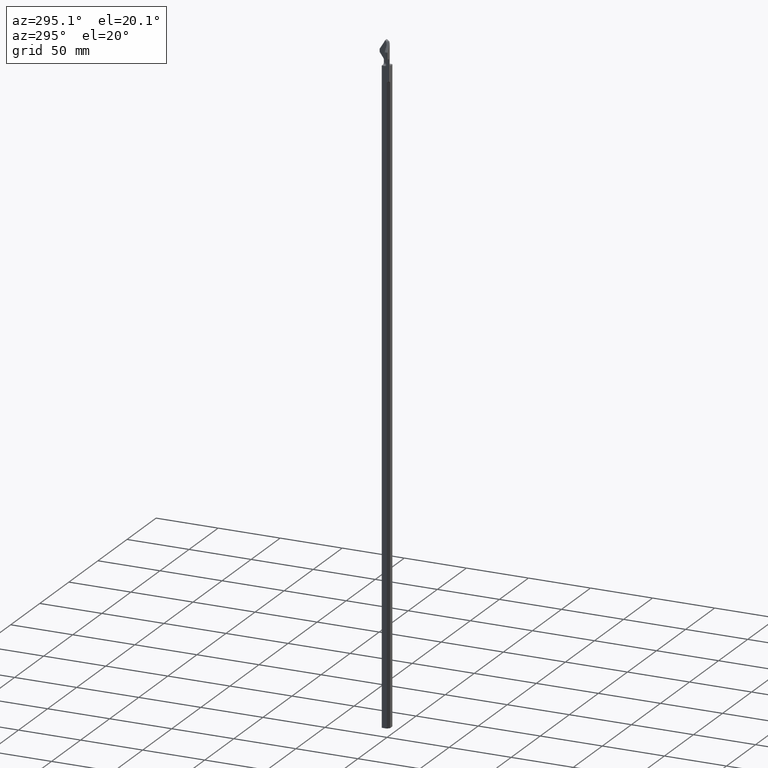
[diagram: clean part render]
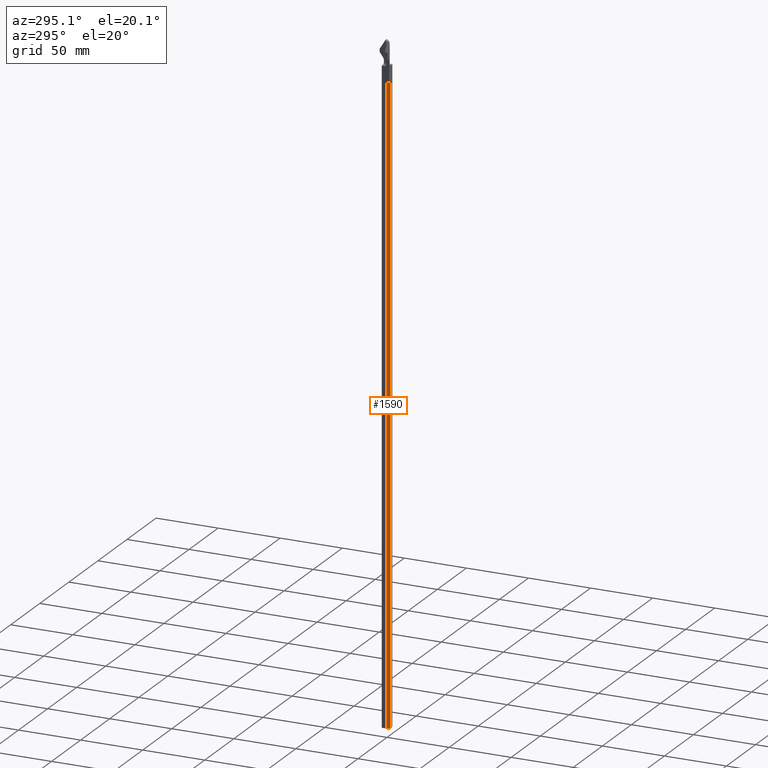
[diagram: same view with one face highlighted and labeled with its STEP entity id]
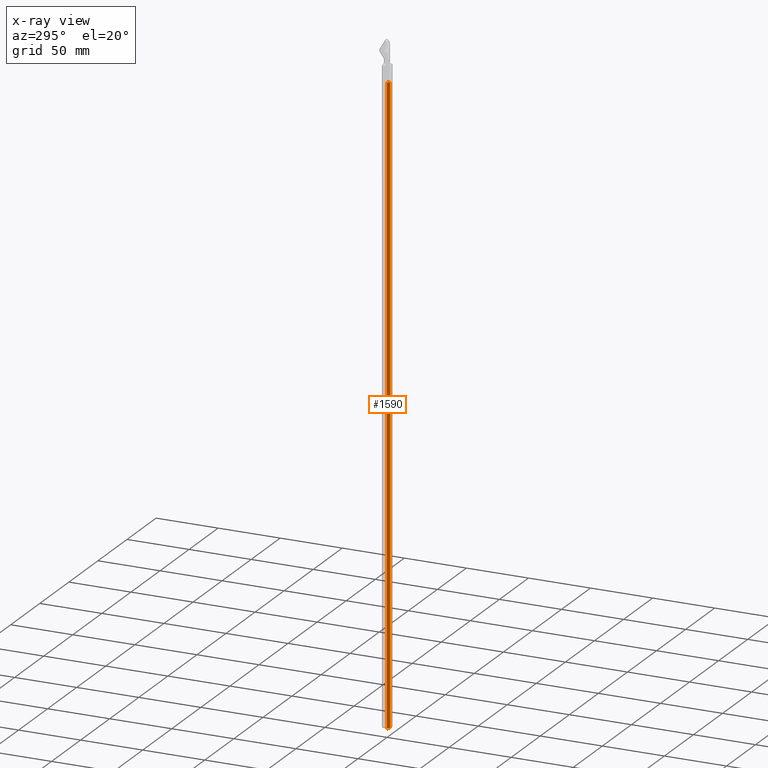
[diagram: x-ray of the same camera — body ghosted, the highlighted face saturated]
A machine part, auxiliary view. The second image highlights one B-rep face of the part: STEP entity #1590.
The next image is the same camera in x-ray: the body ghosted, the highlighted face saturated — about 0% of this face is hidden behind the body in this view.
In plain terms, the highlighted planar face has unit normal (0.7071, 0.7071, 0).
Its self-contained STEP definition (entity closure, byte-faithful):
#189=DIRECTION('',(0.E0,0.E0,-1.E0));
#190=VECTOR('',#189,1.975E1);
#191=CARTESIAN_POINT('',(-1.185E-1,-4.75E-2,9.9E-1));
#192=LINE('',#191,#190);
#237=DIRECTION('',(0.E0,0.E0,-1.E0));
#238=VECTOR('',#237,1.975E1);
#239=CARTESIAN_POINT('',(-4.75E-2,-1.185E-1,9.9E-1));
#240=LINE('',#239,#238);
#241=DIRECTION('',(-7.071067811865E-1,7.071067811865E-1,0.E0));
#242=VECTOR('',#241,1.004091629285E-1);
#243=CARTESIAN_POINT('',(-4.75E-2,-1.185E-1,9.9E-1));
#244=LINE('',#243,#242);
#254=DIRECTION('',(-7.071067811865E-1,7.071067811865E-1,0.E0));
#255=VECTOR('',#254,1.004091629285E-1);
#256=CARTESIAN_POINT('',(-4.75E-2,-1.185E-1,-1.876E1));
#257=LINE('',#256,#255);
#1349=CARTESIAN_POINT('',(-4.75E-2,-1.185E-1,9.9E-1));
#1350=CARTESIAN_POINT('',(-1.185E-1,-4.75E-2,9.9E-1));
#1351=VERTEX_POINT('',#1349);
#1352=VERTEX_POINT('',#1350);
#1365=CARTESIAN_POINT('',(-4.75E-2,-1.185E-1,-1.876E1));
#1366=VERTEX_POINT('',#1365);
#1367=CARTESIAN_POINT('',(-1.185E-1,-4.75E-2,-1.876E1));
#1368=VERTEX_POINT('',#1367);
#1577=CARTESIAN_POINT('',(-4.75E-2,-1.185E-1,9.9E-1));
#1578=DIRECTION('',(7.071067811865E-1,7.071067811865E-1,0.E0));
#1579=DIRECTION('',(-7.071067811865E-1,7.071067811865E-1,0.E0));
#1580=AXIS2_PLACEMENT_3D('',#1577,#1578,#1579);
#1581=PLANE('',#1580);
#1582=ORIENTED_EDGE('',*,*,#1421,.T.);
#1584=ORIENTED_EDGE('',*,*,#1583,.T.);
#1585=ORIENTED_EDGE('',*,*,#1555,.F.);
#1587=ORIENTED_EDGE('',*,*,#1586,.F.);
#1588=EDGE_LOOP('',(#1582,#1584,#1585,#1587));
#1589=FACE_OUTER_BOUND('',#1588,.F.);
#1590=ADVANCED_FACE('',(#1589),#1581,.F.);
#1421=EDGE_CURVE('',#1351,#1366,#240,.T.);
#1555=EDGE_CURVE('',#1352,#1368,#192,.T.);
#1583=EDGE_CURVE('',#1366,#1368,#257,.T.);
#1586=EDGE_CURVE('',#1351,#1352,#244,.T.);